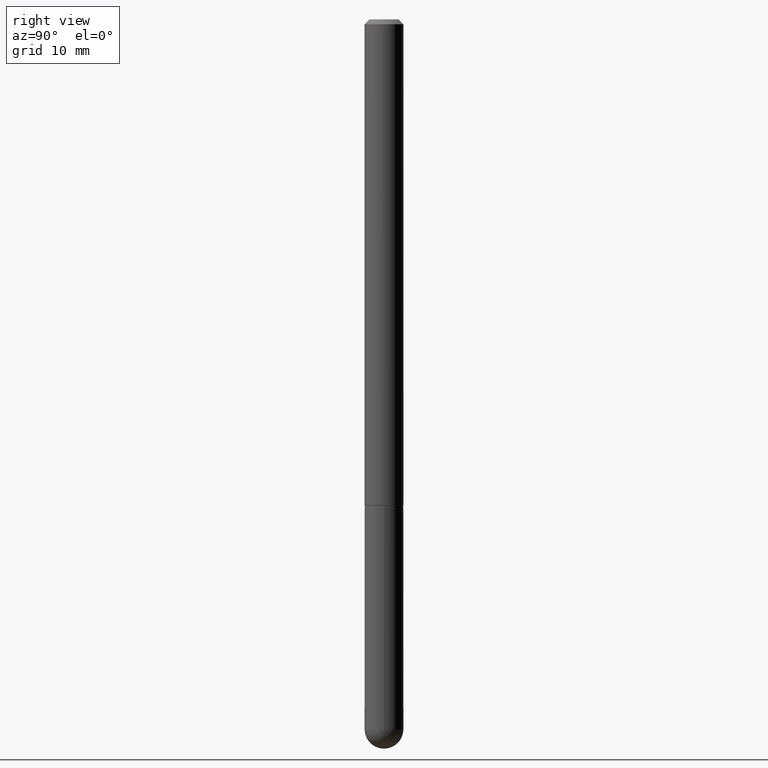
[diagram: clean part render]
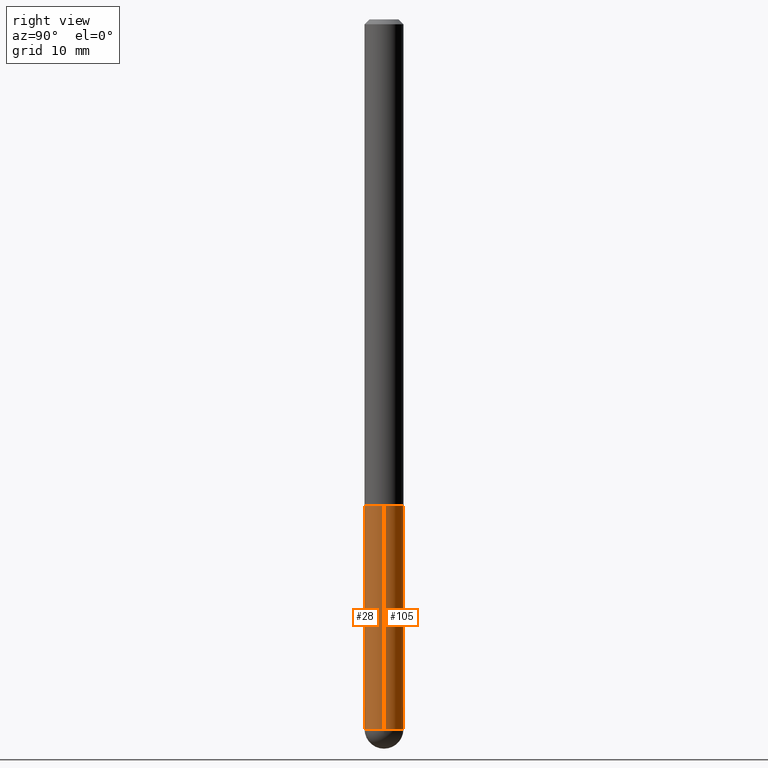
[diagram: same view with one multi-face feature highlighted, each face labeled with its STEP entity id]
A machine part, right view. The highlighted faces form ONE feature: a constant-radius fillet chain: 2 tangent blend faces with common blend radius 2.0002 mm. The faces share edges in the B-rep.
Their STEP definitions:
[1] entity #105 (Cylinder):
#13 = ORIENTED_EDGE ( 'NONE', *, *, #174, .T. ) ;
#17 = FACE_OUTER_BOUND ( 'NONE', #327, .T. ) ;
#18 = VERTEX_POINT ( 'NONE', #303 ) ;
#23 = CIRCLE ( 'NONE', #108, 0.07875000000000000056 ) ;
#63 = EDGE_CURVE ( 'NONE', #18, #352, #331, .T. ) ;
#77 = DIRECTION ( 'NONE',  ( 1.000000000000000000, -6.982962677686264344E-15, 0.000000000000000000 ) ) ;
#88 = EDGE_CURVE ( 'NONE', #294, #299, #23, .T. ) ;
#105 = ADVANCED_FACE ( 'NONE', ( #17 ), #110, .T. ) ;
#108 = AXIS2_PLACEMENT_3D ( 'NONE', #205, #361, #265 ) ;
#110 = CYLINDRICAL_SURFACE ( 'NONE', #309, 0.07874999999999997280 ) ;
#113 = DIRECTION ( 'NONE',  ( -2.445468806185136877E-29, 3.491481338843145188E-15, 1.000000000000000000 ) ) ;
#115 = VECTOR ( 'NONE', #113, 39.37007874015748143 ) ;
#118 = CARTESIAN_POINT ( 'NONE',  ( 0.07875000000000000056, -7.422889326380523475E-15, -1.968499999999999694 ) ) ;
#128 = ORIENTED_EDGE ( 'NONE', *, *, #162, .F. ) ;
#151 = CARTESIAN_POINT ( 'NONE',  ( 7.028399622416392066E-29, -1.003469194190214264E-14, -2.874049999999999994 ) ) ;
#162 = EDGE_CURVE ( 'NONE', #324, #294, #381, .T. ) ;
#174 = EDGE_CURVE ( 'NONE', #324, #18, #236, .T. ) ;
#179 = LINE ( 'NONE', #406, #115 ) ;
#186 = CARTESIAN_POINT ( 'NONE',  ( 0.07874999999999997280, -5.499083108677933457E-16, 3.839989210939298316E-30 ) ) ;
#190 = DIRECTION ( 'NONE',  ( -2.445468806185136597E-29, 3.491481338843145583E-15, 1.000000000000000000 ) ) ;
#198 = ORIENTED_EDGE ( 'NONE', *, *, #88, .F. ) ;
#205 = CARTESIAN_POINT ( 'NONE',  ( 4.813905344975440714E-29, -6.872981015512730918E-15, -1.968499999999999694 ) ) ;
#215 = AXIS2_PLACEMENT_3D ( 'NONE', #279, #378, #222 ) ;
#222 = DIRECTION ( 'NONE',  ( 1.000000000000000000, -6.982962677686264344E-15, 0.000000000000000000 ) ) ;
#236 = CIRCLE ( 'NONE', #215, 0.07874999999999997280 ) ;
#265 = DIRECTION ( 'NONE',  ( 1.000000000000000000, -6.982962677686261977E-15, 0.000000000000000000 ) ) ;
#273 = AXIS2_PLACEMENT_3D ( 'NONE', #151, #407, #77 ) ;
#278 = CARTESIAN_POINT ( 'NONE',  ( -0.07875000000000000056, -7.894284074296357585E-15, -1.968499999999999694 ) ) ;
#279 = CARTESIAN_POINT ( 'NONE',  ( 7.028399622416392066E-29, -1.003469194190214264E-14, -2.874049999999999994 ) ) ;
#283 = DIRECTION ( 'NONE',  ( -2.445468806185136877E-29, 3.491481338843145188E-15, 1.000000000000000000 ) ) ;
#290 = ORIENTED_EDGE ( 'NONE', *, *, #310, .T. ) ;
#294 = VERTEX_POINT ( 'NONE', #118 ) ;
#298 = DIRECTION ( 'NONE',  ( 1.000000000000000000, -6.982962677686267499E-15, 4.876176775795935793E-29 ) ) ;
#299 = VERTEX_POINT ( 'NONE', #278 ) ;
#303 = CARTESIAN_POINT ( 'NONE',  ( 5.499083108678623710E-16, 0.07874999999998978650, -2.874050000000000438 ) ) ;
#304 = VECTOR ( 'NONE', #283, 39.37007874015748143 ) ;
#307 = CARTESIAN_POINT ( 'NONE',  ( 0.07874999999999997280, -9.003744789575230521E-15, -2.874049999999999994 ) ) ;
#309 = AXIS2_PLACEMENT_3D ( 'NONE', #368, #190, #298 ) ;
#310 = EDGE_CURVE ( 'NONE', #352, #299, #179, .T. ) ;
#324 = VERTEX_POINT ( 'NONE', #307 ) ;
#327 = EDGE_LOOP ( 'NONE', ( #404, #290, #198, #128, #13 ) ) ;
#331 = CIRCLE ( 'NONE', #273, 0.07874999999999997280 ) ;
#352 = VERTEX_POINT ( 'NONE', #394 ) ;
#361 = DIRECTION ( 'NONE',  ( -2.445468806185136597E-29, 3.491481338843145583E-15, 1.000000000000000000 ) ) ;
#368 = CARTESIAN_POINT ( 'NONE',  ( 0.000000000000000000, 0.000000000000000000, 0.000000000000000000 ) ) ;
#378 = DIRECTION ( 'NONE',  ( -2.445468806185136597E-29, 3.491481338843145583E-15, 1.000000000000000000 ) ) ;
#381 = LINE ( 'NONE', #186, #304 ) ;
#394 = CARTESIAN_POINT ( 'NONE',  ( -0.07874999999999997280, -7.894284074296357585E-15, -2.874049999999999994 ) ) ;
#404 = ORIENTED_EDGE ( 'NONE', *, *, #63, .T. ) ;
#406 = CARTESIAN_POINT ( 'NONE',  ( -0.07874999999999997280, 5.595524044110787031E-16, -3.873661383575737091E-30 ) ) ;
#407 = DIRECTION ( 'NONE',  ( -2.445468806185136597E-29, 3.491481338843145583E-15, 1.000000000000000000 ) ) ;
[2] entity #28 (Cylinder):
#25 = DIRECTION ( 'NONE',  ( -2.445468806185136597E-29, 3.491481338843145583E-15, 1.000000000000000000 ) ) ;
#27 = DIRECTION ( 'NONE',  ( -2.445468806185136597E-29, 3.491481338843145583E-15, 1.000000000000000000 ) ) ;
#28 = ADVANCED_FACE ( 'NONE', ( #53 ), #29, .T. ) ;
#29 = CYLINDRICAL_SURFACE ( 'NONE', #224, 0.07874999999999997280 ) ;
#30 = EDGE_CURVE ( 'NONE', #299, #294, #325, .T. ) ;
#35 = EDGE_CURVE ( 'NONE', #329, #324, #383, .T. ) ;
#49 = AXIS2_PLACEMENT_3D ( 'NONE', #177, #27, #306 ) ;
#51 = DIRECTION ( 'NONE',  ( 1.000000000000000000, -6.982962677686261977E-15, 0.000000000000000000 ) ) ;
#53 = FACE_OUTER_BOUND ( 'NONE', #134, .T. ) ;
#56 = EDGE_CURVE ( 'NONE', #352, #329, #120, .T. ) ;
#71 = CARTESIAN_POINT ( 'NONE',  ( -5.595524044110105652E-16, -0.07875000000001032563, -2.874049999999999550 ) ) ;
#80 = CARTESIAN_POINT ( 'NONE',  ( 7.028399622416392066E-29, -1.003469194190214264E-14, -2.874049999999999994 ) ) ;
#83 = DIRECTION ( 'NONE',  ( 1.000000000000000000, -6.982962677686267499E-15, 4.876176775795935793E-29 ) ) ;
#111 = ORIENTED_EDGE ( 'NONE', *, *, #35, .T. ) ;
#113 = DIRECTION ( 'NONE',  ( -2.445468806185136877E-29, 3.491481338843145188E-15, 1.000000000000000000 ) ) ;
#115 = VECTOR ( 'NONE', #113, 39.37007874015748143 ) ;
#118 = CARTESIAN_POINT ( 'NONE',  ( 0.07875000000000000056, -7.422889326380523475E-15, -1.968499999999999694 ) ) ;
#119 = ORIENTED_EDGE ( 'NONE', *, *, #162, .T. ) ;
#120 = CIRCLE ( 'NONE', #170, 0.07874999999999997280 ) ;
#134 = EDGE_LOOP ( 'NONE', ( #369, #199, #111, #119, #375 ) ) ;
#162 = EDGE_CURVE ( 'NONE', #324, #294, #381, .T. ) ;
#170 = AXIS2_PLACEMENT_3D ( 'NONE', #80, #178, #234 ) ;
#177 = CARTESIAN_POINT ( 'NONE',  ( 7.028399622416392066E-29, -1.003469194190214264E-14, -2.874049999999999994 ) ) ;
#178 = DIRECTION ( 'NONE',  ( -2.445468806185136597E-29, 3.491481338843145583E-15, 1.000000000000000000 ) ) ;
#179 = LINE ( 'NONE', #406, #115 ) ;
#186 = CARTESIAN_POINT ( 'NONE',  ( 0.07874999999999997280, -5.499083108677933457E-16, 3.839989210939298316E-30 ) ) ;
#199 = ORIENTED_EDGE ( 'NONE', *, *, #56, .T. ) ;
#204 = CARTESIAN_POINT ( 'NONE',  ( 0.000000000000000000, 0.000000000000000000, 0.000000000000000000 ) ) ;
#207 = DIRECTION ( 'NONE',  ( -2.445468806185136597E-29, 3.491481338843145583E-15, 1.000000000000000000 ) ) ;
#224 = AXIS2_PLACEMENT_3D ( 'NONE', #204, #25, #83 ) ;
#234 = DIRECTION ( 'NONE',  ( 1.000000000000000000, -6.982962677686264344E-15, 0.000000000000000000 ) ) ;
#278 = CARTESIAN_POINT ( 'NONE',  ( -0.07875000000000000056, -7.894284074296357585E-15, -1.968499999999999694 ) ) ;
#283 = DIRECTION ( 'NONE',  ( -2.445468806185136877E-29, 3.491481338843145188E-15, 1.000000000000000000 ) ) ;
#294 = VERTEX_POINT ( 'NONE', #118 ) ;
#299 = VERTEX_POINT ( 'NONE', #278 ) ;
#304 = VECTOR ( 'NONE', #283, 39.37007874015748143 ) ;
#306 = DIRECTION ( 'NONE',  ( 1.000000000000000000, -6.982962677686264344E-15, 0.000000000000000000 ) ) ;
#307 = CARTESIAN_POINT ( 'NONE',  ( 0.07874999999999997280, -9.003744789575230521E-15, -2.874049999999999994 ) ) ;
#310 = EDGE_CURVE ( 'NONE', #352, #299, #179, .T. ) ;
#324 = VERTEX_POINT ( 'NONE', #307 ) ;
#325 = CIRCLE ( 'NONE', #376, 0.07875000000000000056 ) ;
#329 = VERTEX_POINT ( 'NONE', #71 ) ;
#352 = VERTEX_POINT ( 'NONE', #394 ) ;
#365 = CARTESIAN_POINT ( 'NONE',  ( 4.813905344975440714E-29, -6.872981015512730918E-15, -1.968499999999999694 ) ) ;
#369 = ORIENTED_EDGE ( 'NONE', *, *, #310, .F. ) ;
#375 = ORIENTED_EDGE ( 'NONE', *, *, #30, .F. ) ;
#376 = AXIS2_PLACEMENT_3D ( 'NONE', #365, #207, #51 ) ;
#381 = LINE ( 'NONE', #186, #304 ) ;
#383 = CIRCLE ( 'NONE', #49, 0.07874999999999997280 ) ;
#394 = CARTESIAN_POINT ( 'NONE',  ( -0.07874999999999997280, -7.894284074296357585E-15, -2.874049999999999994 ) ) ;
#406 = CARTESIAN_POINT ( 'NONE',  ( -0.07874999999999997280, 5.595524044110787031E-16, -3.873661383575737091E-30 ) ) ;